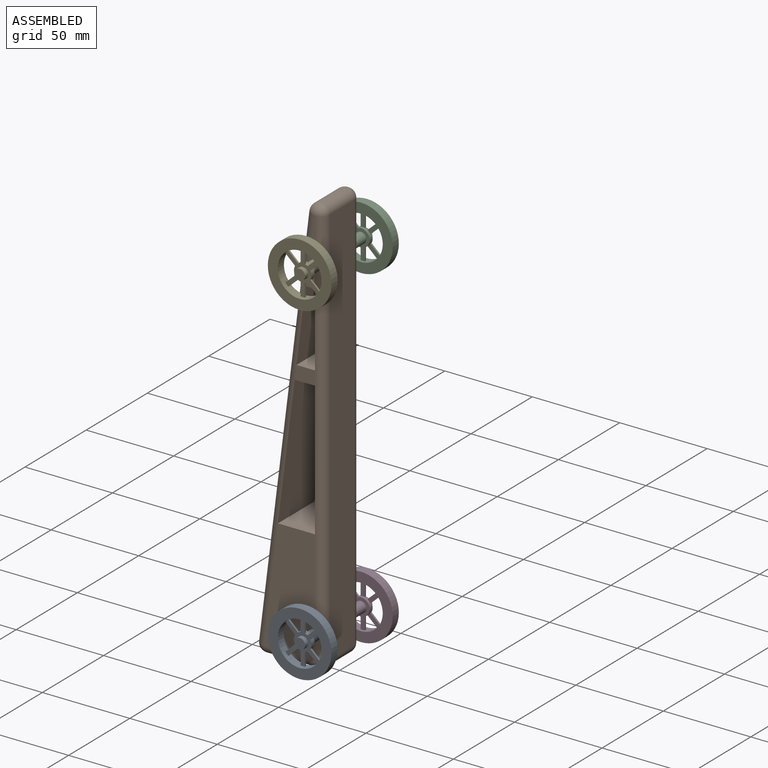
[diagram: assembled view]
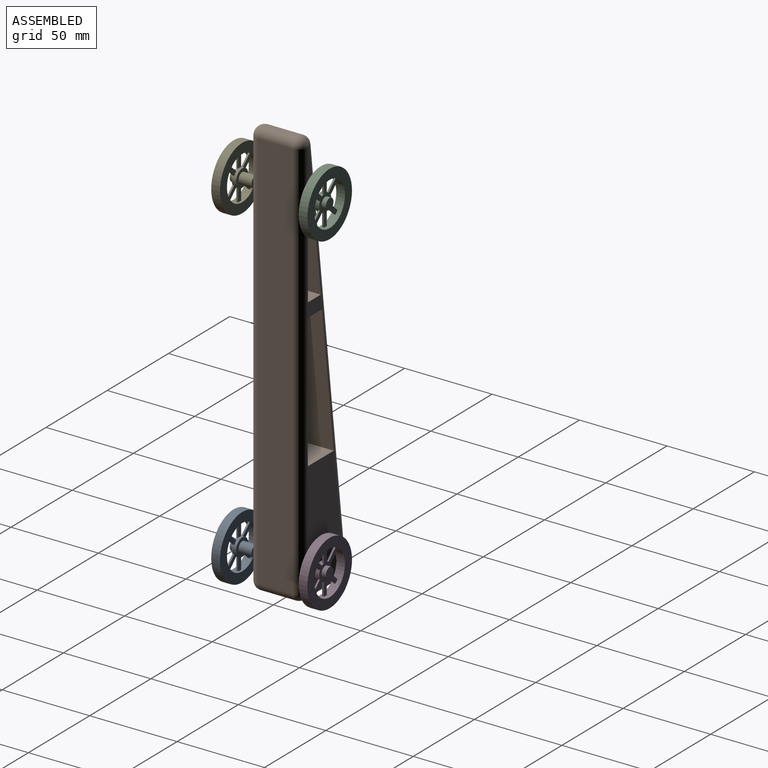
[diagram: assembled view, second angle]
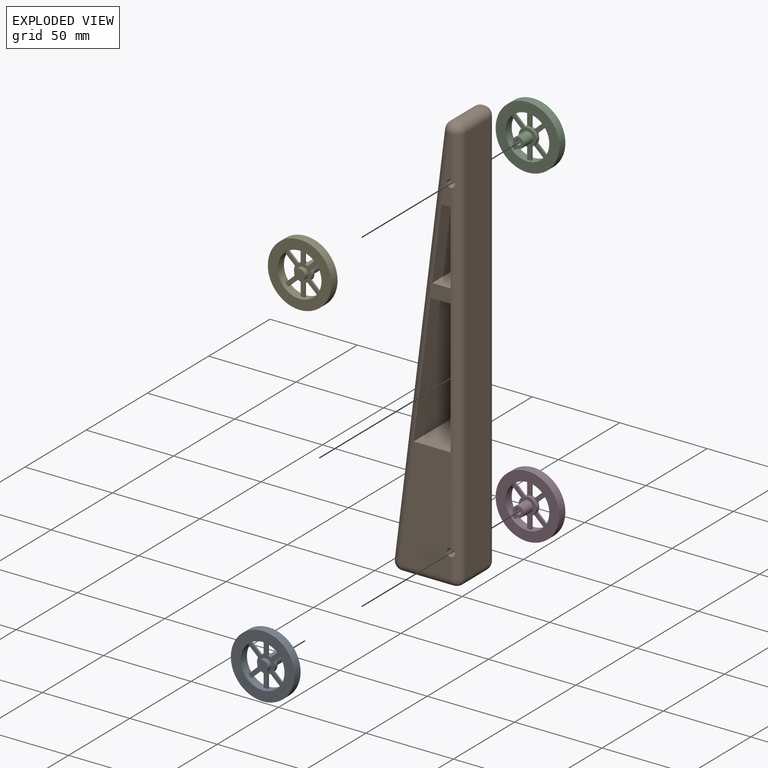
[diagram: exploded view]
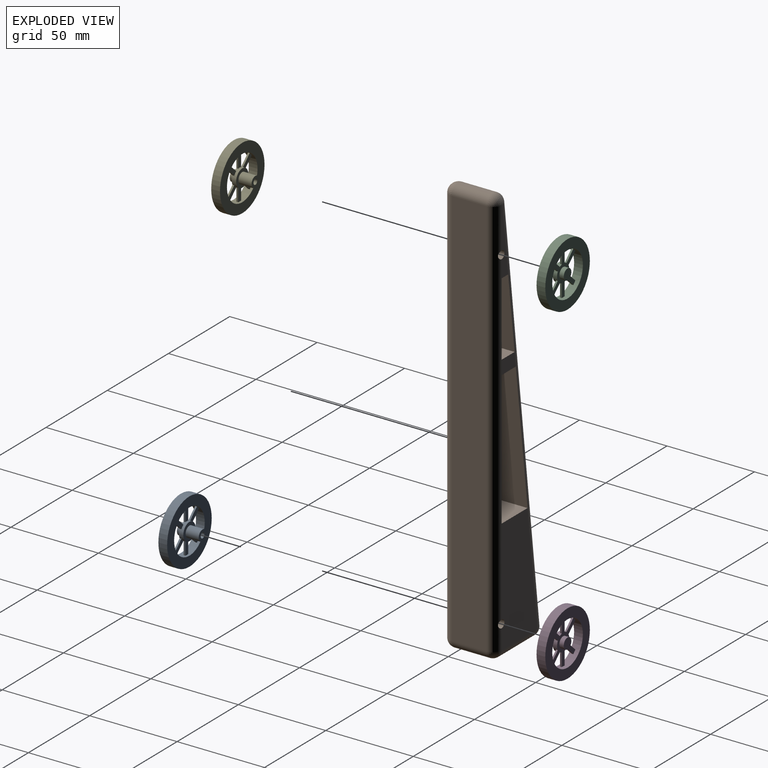
[diagram: exploded view, second angle]
ASSEMBLY  parts=5 mates=4
PART A: 31 faces, bbox 36.4x12.5x36.4 mm
  f0: cylinder r=3.1mm len=7.5mm, axis (0,1,0), area 146.1mm2, adj f2,f5
  f1: cylinder r=1.5mm len=10mm, axis (0,1,0), area 94.2mm2, adj f2,f3
  f2: plane 6.2x6.2mm, normal (0,1,0), area 23.1mm2, adj f0,f1
  f3: plane 3x3mm, normal (0,1,0), area 7.1mm2, adj f1
  f4: cylinder r=5mm len=10mm, axis (0,-1,0), area 64mm2, adj f5,f6,f9,f10,f11,f12,f13,f14
  f5: plane 10x10mm, normal (0,1,0), area 48.3mm2, adj f0,f4
  f6: plane 25.02x19.87mm, normal (0,-1,0), area 156.8mm2, adj f4,f8,f9,f10,f12,f13,f15,f16
  f7: plane 6.18x6.18mm, normal (0,-1,0), area 30mm2, adj f8
  f8: cylinder r=3.09mm len=6.18mm, axis (0,1,0), area 48.5mm2, adj f6,f7
  f9: plane 5.55x5.17mm, normal (0.68,0,-0.73), area 7.6mm2, adj f4,f6,f11,f27
  f10: plane 5.55x5.17mm, normal (-0.68,0,0.73), area 7.6mm2, adj f4,f6,f11,f27
  f11: plane 7.19x6.93mm, normal (0,1,0), area 18.1mm2, adj f4,f9,f10,f27
  f12: plane 7.59x1mm, normal (1,0,0), area 7.6mm2, adj f4,f6,f14,f27
  f13: plane 7.59x1mm, normal (-1,0,0), area 7.6mm2, adj f4,f6,f14,f27
  f14: plane 7.65x2.4mm, normal (0,1,0), area 18.1mm2, adj f4,f12,f13,f27
  f15: plane 5.55x5.17mm, normal (-0.68,0,-0.73), area 7.6mm2, adj f4,f6,f17,f27
  f16: plane 5.55x5.17mm, normal (0.68,0,0.73), area 7.6mm2, adj f4,f6,f17,f27
  f17: plane 7.19x6.93mm, normal (0,1,0), area 18.1mm2, adj f4,f15,f16,f27
  f18: plane 5.55x5.17mm, normal (-0.68,0,0.73), area 7.6mm2, adj f4,f6,f20,f27
  f19: plane 5.55x5.17mm, normal (0.68,0,-0.73), area 7.6mm2, adj f4,f6,f20,f27
  f20: plane 7.19x6.93mm, normal (0,1,0), area 18.1mm2, adj f4,f18,f19,f27
  f21: plane 7.59x1mm, normal (-1,0,0), area 7.6mm2, adj f4,f6,f23,f27
  f22: plane 7.59x1mm, normal (1,0,0), area 7.6mm2, adj f4,f6,f23,f27
  f23: plane 7.65x2.4mm, normal (0,1,0), area 18.1mm2, adj f4,f21,f22,f27
  f24: plane 5.55x5.17mm, normal (-0.68,0,-0.73), area 7.6mm2, adj f4,f6,f26,f27
  f25: plane 5.55x5.17mm, normal (0.68,0,0.73), area 7.6mm2, adj f4,f6,f26,f27
  f26: plane 7.19x6.93mm, normal (0,1,0), area 18.1mm2, adj f4,f24,f25,f27
  f27: cylinder r=12.5mm len=25mm, axis (0,1,0), area 378.3mm2, adj f6,f9,f10,f11,f12,f13,f14,f15
  f28: cylinder r=18.2mm len=36.4mm, axis (0,1,0), area 571.8mm2, adj f29,f30
  f29: plane 36.4x36.4mm, normal (0,-1,0), area 549.7mm2, adj f27,f28
  f30: plane 36.4x36.4mm, normal (0,1,0), area 549.7mm2, adj f27,f28
PART B: 42 faces, bbox 39.3x30x240 mm
  f0: plane 37.81x5.31mm, normal (0,-1,0), area 103.5mm2, adj f13,f20,f26,f36,f40
  f1: plane 37.81x5.31mm, normal (0,1,0), area 103.5mm2, adj f12,f17,f30,f36,f40
  f2: plane 11.56x7.93mm, normal (0,-1,0), area 87.8mm2, adj f20,f26,f32,f37
  f3: plane 11.56x7.93mm, normal (0,1,0), area 87.8mm2, adj f17,f30,f32,f37
  f4: plane 29.34x20mm, normal (0,0,-1), area 508.2mm2, adj f9,f11,f21,f23,f24
  f5: plane 230x20mm, normal (1,0,0), area 4600mm2, adj f11,f16,f17,f20
  f6: plane 20x0.59mm, normal (0,0,1), area 11.7mm2, adj f12,f13,f16,f28
  f7: plane 65.41x29.34mm, normal (0,-1,0), area 1643.5mm2, adj f20,f24,f26,f33,f41
  f8: plane 65.41x29.34mm, normal (0,1,0), area 1643.5mm2, adj f17,f21,f30,f33,f41
  f9: cylinder r=5mm len=55mm, axis (0,0,-1), area 1727.9mm2, adj f4,f14
  f10: plane 230x28.75mm, normal (-0.99,0,0.12), area 4635.8mm2, adj f23,f26,f28,f30
  f11: cylinder r=5mm len=20mm, axis (0,-1,0), area 157.1mm2, adj f4,f5,f19,f22
  f12: cylinder r=5mm len=5mm, axis (-1,0,0), area 4.6mm2, adj f1,f6,f15,f29
  f13: cylinder r=5mm len=5mm, axis (1,0,0), area 4.6mm2, adj f0,f6,f18,f27
  f14: sphere r=5mm, area 157.1mm2, adj f9
  f15: sphere r=5mm, area 39.3mm2, adj f12,f16,f17
  f16: cylinder r=5mm len=20mm, axis (0,1,0), area 157.1mm2, adj f5,f6,f15,f18
  f17: cylinder r=5mm len=230mm, axis (0,0,1), area 1790.1mm2, adj f1,f3,f5,f8,f15,f19,f35,f39
  f18: sphere r=5mm, area 39.3mm2, adj f13,f16,f20
  f19: sphere r=5mm, area 39.3mm2, adj f11,f17,f21
  f20: cylinder r=5mm len=230mm, axis (0,0,-1), area 1790.1mm2, adj f0,f2,f5,f7,f18,f22,f35,f39
  f21: cylinder r=5mm len=29.34mm, axis (1,0,0), area 230.4mm2, adj f4,f8,f19,f31
  f22: sphere r=5mm, area 39.3mm2, adj f11,f20,f24
  f23: cylinder r=5mm len=20mm, axis (0,-1,0), area 169.5mm2, adj f4,f10,f25,f31
  f24: cylinder r=5mm len=29.34mm, axis (-1,0,0), area 230.4mm2, adj f4,f7,f22,f25
  f25: sphere r=5mm, area 42.4mm2, adj f23,f24,f26
  f26: cylinder r=5mm len=230.62mm, axis (-0.12,0,-0.99), area 1820.5mm2, adj f0,f2,f7,f10,f25,f27,f34,f38
  f27: sphere r=5mm, area 36.2mm2, adj f13,f26,f28
  f28: cylinder r=5mm len=20mm, axis (0,-1,0), area 144.6mm2, adj f6,f10,f27,f29
  f29: sphere r=5mm, area 36.2mm2, adj f12,f28,f30
  f30: cylinder r=5mm len=230.62mm, axis (0.12,0,0.99), area 1820.5mm2, adj f1,f3,f8,f10,f29,f31,f34,f38
  f31: sphere r=5mm, area 42.4mm2, adj f21,f23,f30
  f32: plane 30x11.56mm, normal (0,0,-1), area 346.9mm2, adj f2,f3,f34,f35
  f33: plane 30x21.16mm, normal (0,0,1), area 634.8mm2, adj f7,f8,f34,f35
  f34: plane 76.77x30mm, normal (0.99,0,-0.12), area 2321.1mm2, adj f26,f30,f32,f33
  f35: plane 76.77x30mm, normal (-1,0,0), area 2303.2mm2, adj f17,f20,f32,f33
  f36: plane 30x5.31mm, normal (0,0,-1), area 159.4mm2, adj f0,f1,f38,f39
  f37: plane 30x10.57mm, normal (0,0,1), area 317.2mm2, adj f2,f3,f38,f39
  f38: plane 42.08x30mm, normal (0.99,0,-0.12), area 1272.2mm2, adj f26,f30,f36,f37
  f39: plane 42.08x30mm, normal (-1,0,0), area 1262.4mm2, adj f17,f20,f36,f37
  f40: cylinder r=2.25mm len=30mm, axis (0,-1,0), area 420.4mm2, adj f0,f1,f17,f20
  f41: cylinder r=2.25mm len=30mm, axis (0,-1,0), area 420.4mm2, adj f7,f8,f17,f20
PART C: 31 faces, bbox 36.4x12.5x36.4 mm
  f0: cylinder r=3.1mm len=7.5mm, axis (0,-1,0), area 146.1mm2, adj f2,f5
  f1: cylinder r=1.5mm len=10mm, axis (0,-1,0), area 94.2mm2, adj f2,f3
  f2: plane 6.2x6.2mm, normal (0,-1,0), area 23.1mm2, adj f0,f1
  f3: plane 3x3mm, normal (0,-1,0), area 7.1mm2, adj f1
  f4: cylinder r=5mm len=10mm, axis (0,1,0), area 64mm2, adj f5,f6,f9,f10,f11,f12,f13,f14
  f5: plane 10x10mm, normal (0,-1,0), area 48.3mm2, adj f0,f4
  f6: plane 25.02x19.87mm, normal (0,1,0), area 156.8mm2, adj f4,f8,f9,f10,f12,f13,f15,f16
  f7: plane 6.18x6.18mm, normal (0,1,0), area 30mm2, adj f8
  f8: cylinder r=3.09mm len=6.18mm, axis (0,-1,0), area 48.5mm2, adj f6,f7
  f9: plane 5.55x5.17mm, normal (0.68,0,-0.73), area 7.6mm2, adj f4,f6,f11,f27
  f10: plane 5.55x5.17mm, normal (-0.68,0,0.73), area 7.6mm2, adj f4,f6,f11,f27
  f11: plane 7.19x6.93mm, normal (0,-1,0), area 18.1mm2, adj f4,f9,f10,f27
  f12: plane 7.59x1mm, normal (1,0,0), area 7.6mm2, adj f4,f6,f14,f27
  f13: plane 7.59x1mm, normal (-1,0,0), area 7.6mm2, adj f4,f6,f14,f27
  f14: plane 7.65x2.4mm, normal (0,-1,0), area 18.1mm2, adj f4,f12,f13,f27
  f15: plane 5.55x5.17mm, normal (-0.68,0,-0.73), area 7.6mm2, adj f4,f6,f17,f27
  f16: plane 5.55x5.17mm, normal (0.68,0,0.73), area 7.6mm2, adj f4,f6,f17,f27
  f17: plane 7.19x6.93mm, normal (0,-1,0), area 18.1mm2, adj f4,f15,f16,f27
  f18: plane 5.55x5.17mm, normal (-0.68,0,0.73), area 7.6mm2, adj f4,f6,f20,f27
  f19: plane 5.55x5.17mm, normal (0.68,0,-0.73), area 7.6mm2, adj f4,f6,f20,f27
  f20: plane 7.19x6.93mm, normal (0,-1,0), area 18.1mm2, adj f4,f18,f19,f27
  f21: plane 7.59x1mm, normal (-1,0,0), area 7.6mm2, adj f4,f6,f23,f27
  f22: plane 7.59x1mm, normal (1,0,0), area 7.6mm2, adj f4,f6,f23,f27
  f23: plane 7.65x2.4mm, normal (0,-1,0), area 18.1mm2, adj f4,f21,f22,f27
  f24: plane 5.55x5.17mm, normal (-0.68,0,-0.73), area 7.6mm2, adj f4,f6,f26,f27
  f25: plane 5.55x5.17mm, normal (0.68,0,0.73), area 7.6mm2, adj f4,f6,f26,f27
  f26: plane 7.19x6.93mm, normal (0,-1,0), area 18.1mm2, adj f4,f24,f25,f27
  f27: cylinder r=12.5mm len=25mm, axis (0,-1,0), area 378.3mm2, adj f6,f9,f10,f11,f12,f13,f14,f15
  f28: cylinder r=18.2mm len=36.4mm, axis (0,-1,0), area 571.8mm2, adj f29,f30
  f29: plane 36.4x36.4mm, normal (0,1,0), area 549.7mm2, adj f27,f28
  f30: plane 36.4x36.4mm, normal (0,-1,0), area 549.7mm2, adj f27,f28
PART D: same geometry as C
PART E: same geometry as A
PLACE A t=(-104.68,-13.54,-14.98)mm
PLACE B t=(-20.48,16.46,-6.27)mm
PLACE C t=(-104.68,-8.54,175.76)mm
PLACE D t=(-104.68,-8.54,-14.98)mm
PLACE E t=(-104.68,-13.54,175.76)mm
MATE revolute E.f0 <-> B.f40  axis (0,1,0) through (-104.68,-13.54,175.76)mm
MATE revolute A.f0 <-> B.f41  axis (0,1,0) through (-104.68,-13.54,-14.98)mm
MATE revolute C.f0 <-> B.f40  axis (0,-1,0) through (-104.68,16.46,175.76)mm
MATE revolute D.f0 <-> B.f41  axis (0,-1,0) through (-104.68,16.46,-14.98)mm
